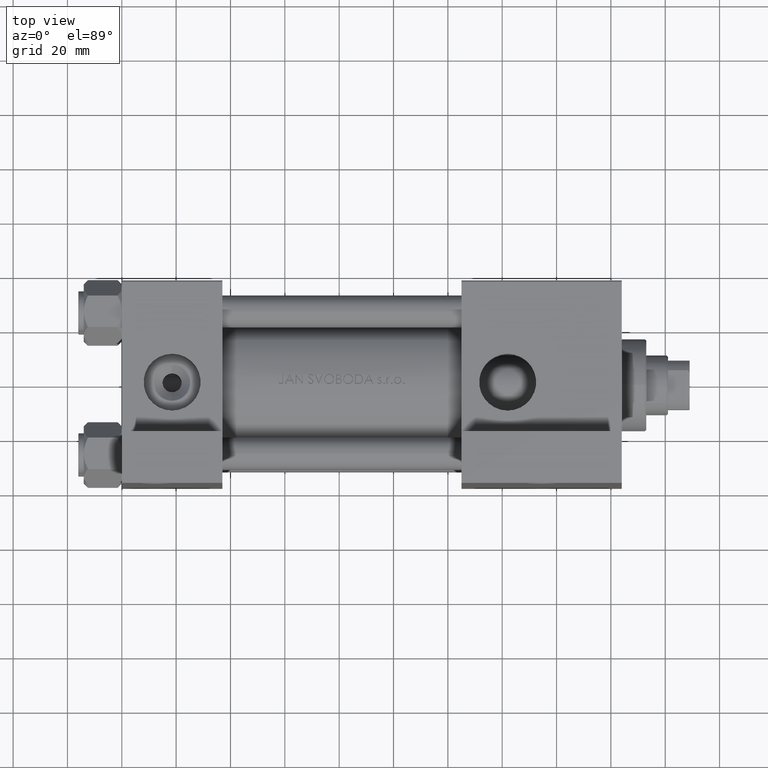
[diagram: clean part render]
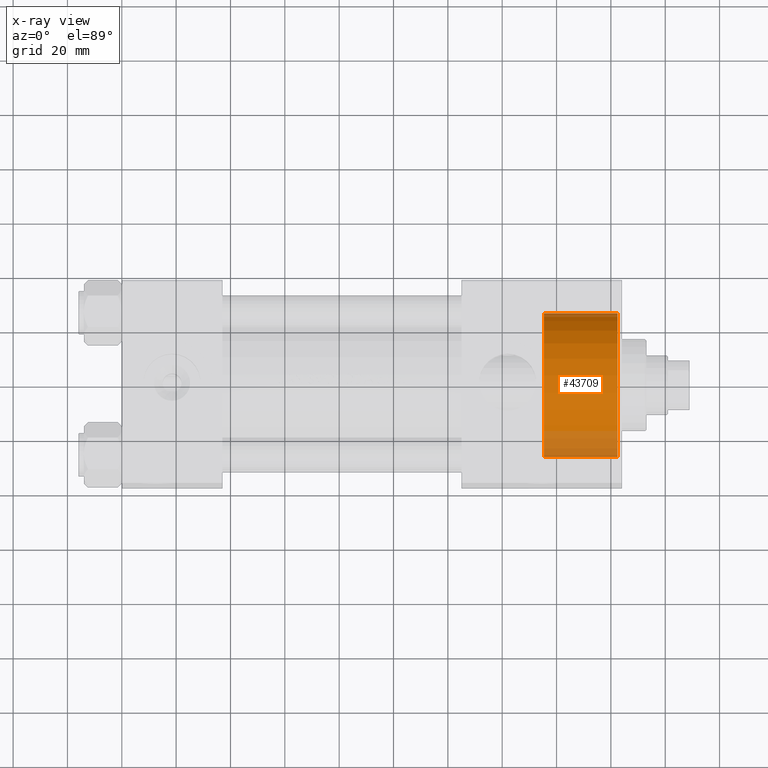
[diagram: x-ray — body ghosted, one internal face saturated and labeled with its STEP entity id]
A machine part, top view, then the same camera in x-ray: the body is ghosted and one INTERNAL B-rep face — a face not visible from any outside direction — is saturated and labeled: STEP entity #43709.
In plain terms, the highlighted cylindrical surface (partial cylindrical patch) has radius 26.5 mm, axis along (1, 0, 0).
Its self-contained STEP definition (entity closure, byte-faithful):
#2074 = CARTESIAN_POINT ( 'NONE',  ( 155.2999999999999829, 0.000000000000000000, -0.5000000000000004441 ) ) ;
#2171 = CARTESIAN_POINT ( 'NONE',  ( 182.5000000000000284, 0.000000000000000000, -27.00000000000000355 ) ) ;
#2610 = DIRECTION ( 'NONE',  ( 0.000000000000000000, 0.000000000000000000, -1.000000000000000000 ) ) ;
#2940 = VERTEX_POINT ( 'NONE', #3655 ) ;
#3015 = CARTESIAN_POINT ( 'NONE',  ( 182.5000000000000284, 0.000000000000000000, -0.5000000000000004441 ) ) ;
#3655 = CARTESIAN_POINT ( 'NONE',  ( 182.5000000000000284, 3.245314017740486554E-15, 26.00000000000000355 ) ) ;
#6234 = EDGE_LOOP ( 'NONE', ( #33234, #36842, #26553, #28520 ) ) ;
#6817 = EDGE_CURVE ( 'NONE', #22851, #39642, #33834, .T. ) ;
#9517 = DIRECTION ( 'NONE',  ( 0.000000000000000000, 0.000000000000000000, -1.000000000000000000 ) ) ;
#9583 = CARTESIAN_POINT ( 'NONE',  ( 155.2999999999999829, 0.000000000000000000, -0.5000000000000004441 ) ) ;
#9749 = DIRECTION ( 'NONE',  ( 0.000000000000000000, 0.000000000000000000, 1.000000000000000000 ) ) ;
#11616 = AXIS2_PLACEMENT_3D ( 'NONE', #2074, #16740, #9517 ) ;
#12512 = VERTEX_POINT ( 'NONE', #17645 ) ;
#13048 = CIRCLE ( 'NONE', #11616, 26.50000000000000355 ) ;
#13999 = LINE ( 'NONE', #44052, #30603 ) ;
#16740 = DIRECTION ( 'NONE',  ( 1.000000000000000000, 0.000000000000000000, 0.000000000000000000 ) ) ;
#17645 = CARTESIAN_POINT ( 'NONE',  ( 155.2999999999999829, 3.245314017740486554E-15, 26.00000000000000355 ) ) ;
#17718 = CIRCLE ( 'NONE', #44617, 26.50000000000000355 ) ;
#19170 = AXIS2_PLACEMENT_3D ( 'NONE', #9583, #39157, #2610 ) ;
#19884 = DIRECTION ( 'NONE',  ( 1.000000000000000000, -0.000000000000000000, -0.000000000000000000 ) ) ;
#20591 = DIRECTION ( 'NONE',  ( 1.000000000000000000, 0.000000000000000000, 0.000000000000000000 ) ) ;
#22261 = EDGE_CURVE ( 'NONE', #2940, #39642, #17718, .T. ) ;
#22851 = VERTEX_POINT ( 'NONE', #27917 ) ;
#23162 = EDGE_CURVE ( 'NONE', #12512, #22851, #13048, .T. ) ;
#25048 = VECTOR ( 'NONE', #19884, 1000.000000000000000 ) ;
#26553 = ORIENTED_EDGE ( 'NONE', *, *, #22261, .T. ) ;
#26856 = CARTESIAN_POINT ( 'NONE',  ( 155.2999999999999829, 0.000000000000000000, -27.00000000000000355 ) ) ;
#27917 = CARTESIAN_POINT ( 'NONE',  ( 155.2999999999999829, 0.000000000000000000, -27.00000000000000355 ) ) ;
#28520 = ORIENTED_EDGE ( 'NONE', *, *, #6817, .F. ) ;
#30603 = VECTOR ( 'NONE', #43820, 1000.000000000000000 ) ;
#31252 = FACE_OUTER_BOUND ( 'NONE', #6234, .T. ) ;
#33234 = ORIENTED_EDGE ( 'NONE', *, *, #23162, .F. ) ;
#33834 = LINE ( 'NONE', #26856, #25048 ) ;
#36842 = ORIENTED_EDGE ( 'NONE', *, *, #40726, .T. ) ;
#39157 = DIRECTION ( 'NONE',  ( 1.000000000000000000, -0.000000000000000000, -0.000000000000000000 ) ) ;
#39642 = VERTEX_POINT ( 'NONE', #2171 ) ;
#40726 = EDGE_CURVE ( 'NONE', #12512, #2940, #13999, .T. ) ;
#43709 = ADVANCED_FACE ( 'NONE', ( #31252 ), #46612, .F. ) ;
#43820 = DIRECTION ( 'NONE',  ( 1.000000000000000000, -0.000000000000000000, -0.000000000000000000 ) ) ;
#44052 = CARTESIAN_POINT ( 'NONE',  ( 155.2999999999999829, 3.245314017740486554E-15, 26.00000000000000355 ) ) ;
#44617 = AXIS2_PLACEMENT_3D ( 'NONE', #3015, #20591, #9749 ) ;
#46612 = CYLINDRICAL_SURFACE ( 'NONE', #19170, 26.50000000000000355 ) ;